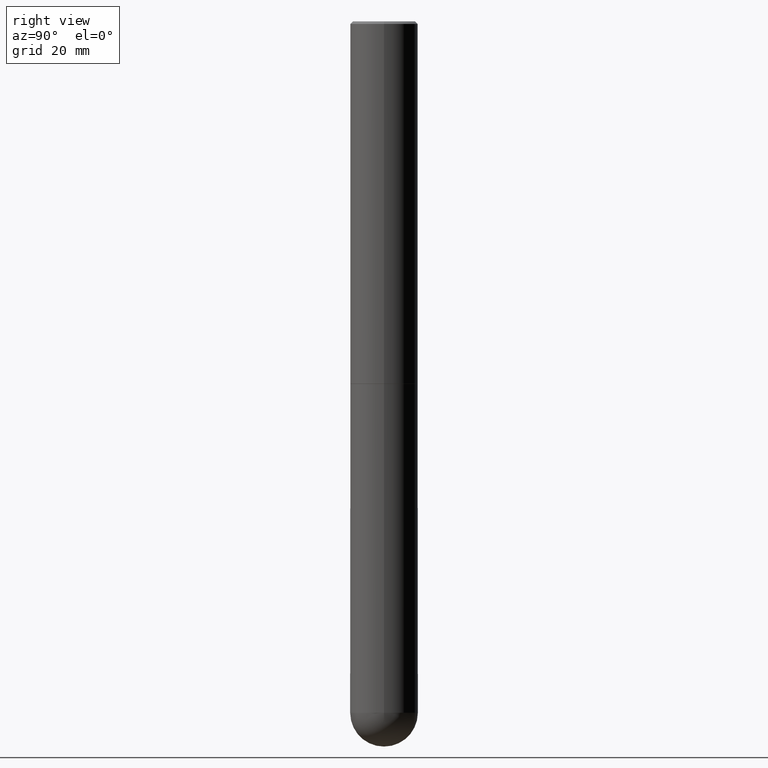
[diagram: clean part render]
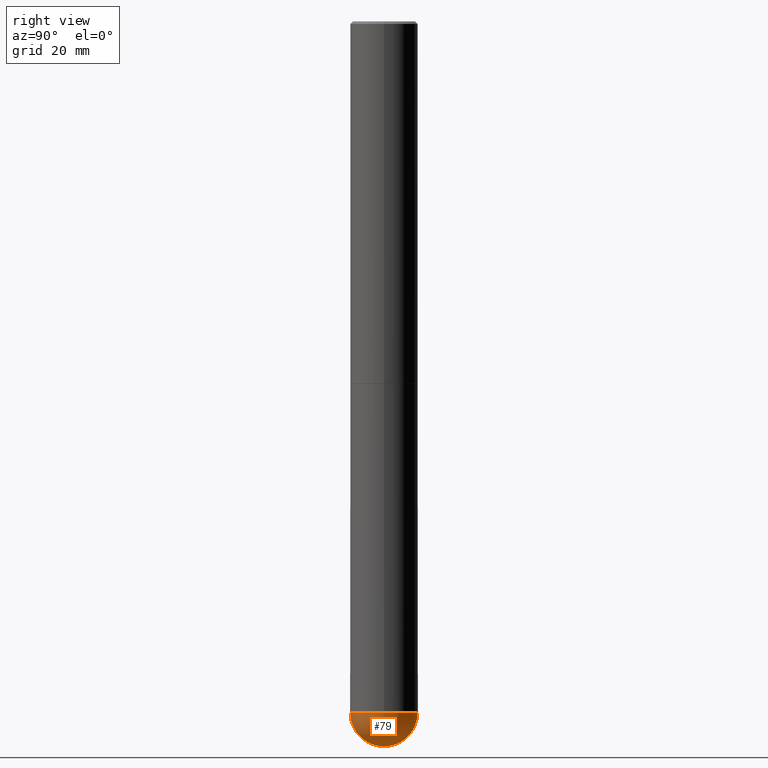
[diagram: same view with one face highlighted and labeled with its STEP entity id]
A machine part, right view. The second image highlights one B-rep face of the part: STEP entity #79.
In plain terms, the highlighted spherical surface has radius 7.0002 mm.
Its self-contained STEP definition (entity closure, byte-faithful):
#1 = CARTESIAN_POINT ( 'NONE',  ( 1.343662505402781410E-28, -2.013087315769307636E-14, -5.629900000000000126 ) ) ;
#17 = CIRCLE ( 'NONE', #254, 0.2756000000000000671 ) ;
#22 = CARTESIAN_POINT ( 'NONE',  ( 1.376774483194169922E-28, -1.965669078955302449E-14, -5.629900000000000126 ) ) ;
#30 = EDGE_CURVE ( 'NONE', #341, #75, #297, .T. ) ;
#41 = DIRECTION ( 'NONE',  ( 1.000000000000000000, -6.982962677686264344E-15, 0.000000000000000000 ) ) ;
#55 = CIRCLE ( 'NONE', #367, 0.2756000000000000671 ) ;
#57 = VERTEX_POINT ( 'NONE', #142 ) ;
#73 = DIRECTION ( 'NONE',  ( -1.000000000000000000, 7.105427357601001070E-15, -4.926315508542082329E-29 ) ) ;
#74 = AXIS2_PLACEMENT_3D ( 'NONE', #330, #163, #300 ) ;
#75 = VERTEX_POINT ( 'NONE', #197 ) ;
#76 = SPHERICAL_SURFACE ( 'NONE', #74, 0.2756000000000000671 ) ;
#79 = ADVANCED_FACE ( 'NONE', ( #237 ), #76, .T. ) ;
#90 = EDGE_CURVE ( 'NONE', #57, #294, #201, .T. ) ;
#110 = DIRECTION ( 'NONE',  ( -2.445468806185136597E-29, 3.491481338843145583E-15, 1.000000000000000000 ) ) ;
#126 = DIRECTION ( 'NONE',  ( -7.105427357601001859E-15, -1.000000000000000000, 0.000000000000000000 ) ) ;
#128 = EDGE_LOOP ( 'NONE', ( #159, #328, #228, #386 ) ) ;
#142 = CARTESIAN_POINT ( 'NONE',  ( -1.958255779754700116E-15, -0.2756000000000199956, -5.629899999999999238 ) ) ;
#159 = ORIENTED_EDGE ( 'NONE', *, *, #216, .F. ) ;
#163 = DIRECTION ( 'NONE',  ( -1.000000000000000000, 6.982962677686265922E-15, -4.883557194083112901E-29 ) ) ;
#164 = CARTESIAN_POINT ( 'NONE',  ( 0.2756000000000000671, -1.690749838334792865E-14, -5.629900000000000126 ) ) ;
#197 = CARTESIAN_POINT ( 'NONE',  ( 1.924504513970471427E-15, 0.2755999999999801942, -5.629900000000001015 ) ) ;
#201 = CIRCLE ( 'NONE', #320, 0.2756000000000000671 ) ;
#213 = DIRECTION ( 'NONE',  ( 1.000000000000000000, -6.982962677686265922E-15, 4.883557194083112340E-29 ) ) ;
#216 = EDGE_CURVE ( 'NONE', #341, #57, #55, .T. ) ;
#217 = EDGE_CURVE ( 'NONE', #294, #75, #17, .T. ) ;
#228 = ORIENTED_EDGE ( 'NONE', *, *, #217, .F. ) ;
#237 = FACE_OUTER_BOUND ( 'NONE', #128, .T. ) ;
#254 = AXIS2_PLACEMENT_3D ( 'NONE', #257, #391, #41 ) ;
#257 = CARTESIAN_POINT ( 'NONE',  ( 1.376774483194169922E-28, -1.965669078955302449E-14, -5.629900000000000126 ) ) ;
#294 = VERTEX_POINT ( 'NONE', #164 ) ;
#297 = CIRCLE ( 'NONE', #334, 0.2756000000000000671 ) ;
#300 = DIRECTION ( 'NONE',  ( 6.982962677686265922E-15, 1.000000000000000000, -3.964946289788479319E-15 ) ) ;
#320 = AXIS2_PLACEMENT_3D ( 'NONE', #22, #110, #378 ) ;
#323 = CARTESIAN_POINT ( 'NONE',  ( 1.343662505402781410E-28, -2.013087315769307636E-14, -5.629900000000000126 ) ) ;
#328 = ORIENTED_EDGE ( 'NONE', *, *, #30, .T. ) ;
#330 = CARTESIAN_POINT ( 'NONE',  ( 1.343662505402781410E-28, -2.013087315769307636E-14, -5.629900000000000126 ) ) ;
#334 = AXIS2_PLACEMENT_3D ( 'NONE', #1, #213, #379 ) ;
#341 = VERTEX_POINT ( 'NONE', #407 ) ;
#367 = AXIS2_PLACEMENT_3D ( 'NONE', #323, #73, #126 ) ;
#378 = DIRECTION ( 'NONE',  ( 1.000000000000000000, -6.982962677686264344E-15, 0.000000000000000000 ) ) ;
#379 = DIRECTION ( 'NONE',  ( 6.982962677686267499E-15, 1.000000000000000000, 0.000000000000000000 ) ) ;
#386 = ORIENTED_EDGE ( 'NONE', *, *, #90, .F. ) ;
#391 = DIRECTION ( 'NONE',  ( -2.445468806185136597E-29, 3.491481338843145583E-15, 1.000000000000000000 ) ) ;
#407 = CARTESIAN_POINT ( 'NONE',  ( 1.412238044847732931E-28, -2.107624978178599697E-14, -5.905499999999999972 ) ) ;